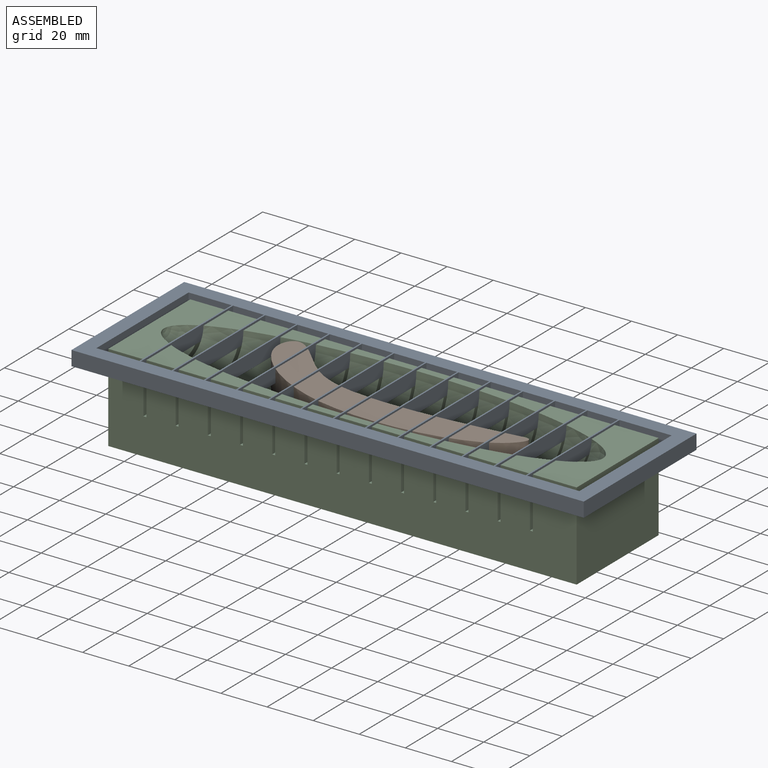
[diagram: assembled view]
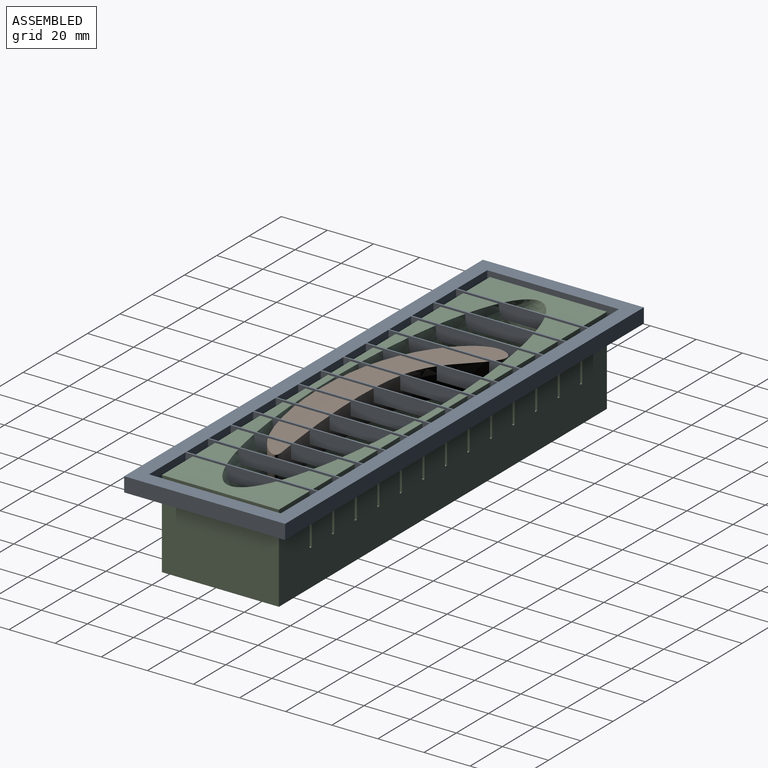
[diagram: assembled view, second angle]
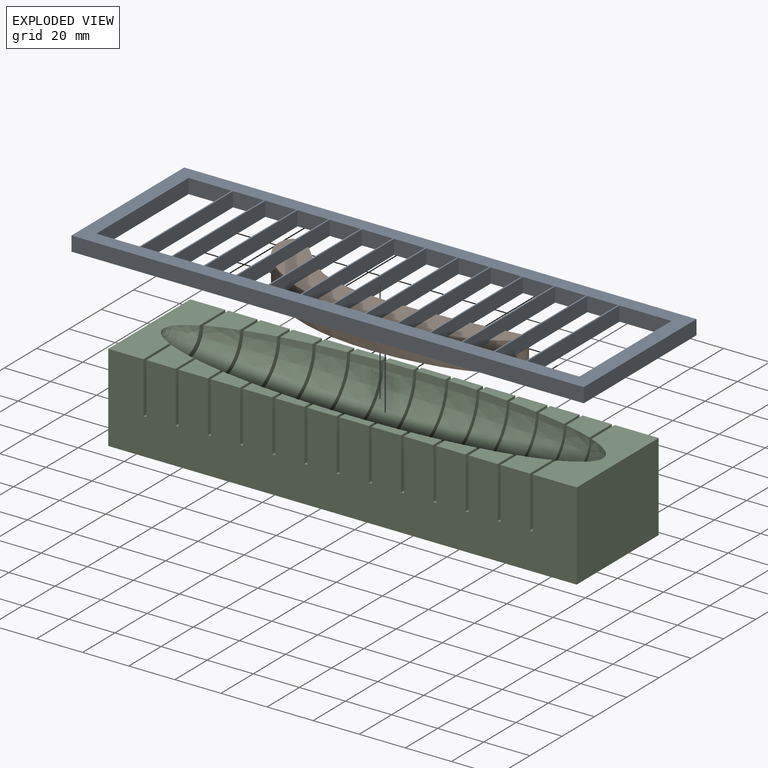
[diagram: exploded view]
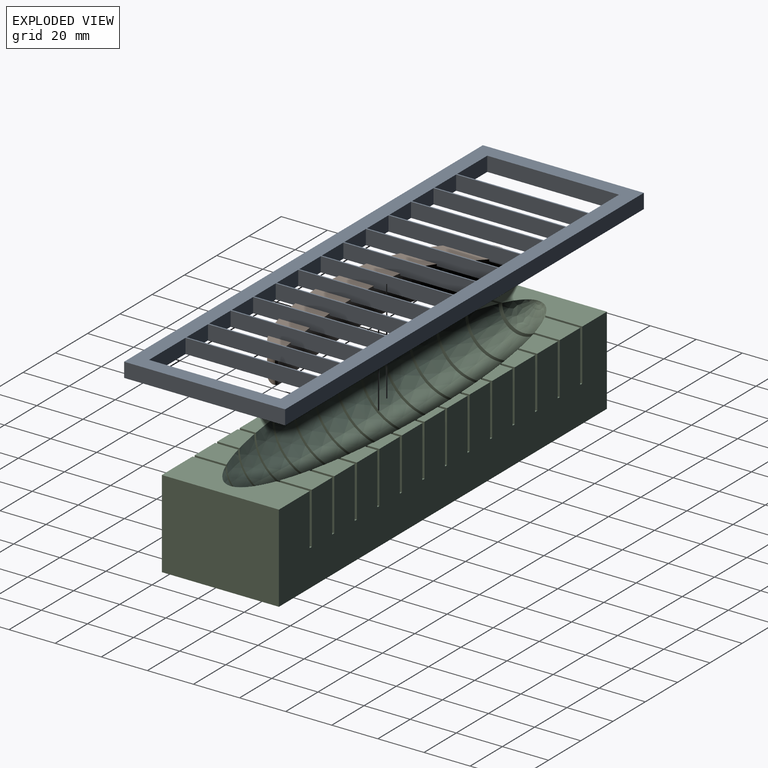
[diagram: exploded view, second angle]
ASSEMBLY  parts=3 mates=2
PART A: 62 faces, bbox 222.3x69.9x6.4 mm
  f0: plane 13.34x6.35mm, normal (0,1,0), area 84.7mm2, adj f34,f35,f59,f60
  f1: plane 13.34x6.35mm, normal (0,-1,0), area 84.7mm2, adj f34,f35,f59,f60
  f2: plane 13.34x6.35mm, normal (0,1,0), area 84.7mm2, adj f34,f35,f57,f58
  f3: plane 13.34x6.35mm, normal (0,-1,0), area 84.7mm2, adj f34,f35,f57,f58
  f4: plane 13.34x6.35mm, normal (0,1,0), area 84.7mm2, adj f34,f35,f55,f56
  f5: plane 13.34x6.35mm, normal (0,-1,0), area 84.7mm2, adj f34,f35,f55,f56
  f6: plane 13.34x6.35mm, normal (0,1,0), area 84.7mm2, adj f34,f35,f53,f54
  f7: plane 13.34x6.35mm, normal (0,-1,0), area 84.7mm2, adj f34,f35,f53,f54
  f8: plane 13.34x6.35mm, normal (0,1,0), area 84.7mm2, adj f34,f35,f51,f52
  f9: plane 13.34x6.35mm, normal (0,-1,0), area 84.7mm2, adj f34,f35,f51,f52
  f10: plane 13.34x6.35mm, normal (0,1,0), area 84.7mm2, adj f34,f35,f49,f50
  f11: plane 13.34x6.35mm, normal (0,-1,0), area 84.7mm2, adj f34,f35,f49,f50
  f12: plane 13.34x6.35mm, normal (0,1,0), area 84.7mm2, adj f34,f35,f47,f48
  f13: plane 13.34x6.35mm, normal (0,-1,0), area 84.7mm2, adj f34,f35,f47,f48
  f14: plane 13.34x6.35mm, normal (0,1,0), area 84.7mm2, adj f34,f35,f45,f46
  f15: plane 13.34x6.35mm, normal (0,-1,0), area 84.7mm2, adj f34,f35,f45,f46
  f16: plane 13.34x6.35mm, normal (0,1,0), area 84.7mm2, adj f34,f35,f43,f44
  f17: plane 13.34x6.35mm, normal (0,-1,0), area 84.7mm2, adj f34,f35,f43,f44
  f18: plane 13.34x6.35mm, normal (0,1,0), area 84.7mm2, adj f34,f35,f41,f42
  f19: plane 13.34x6.35mm, normal (0,-1,0), area 84.7mm2, adj f34,f35,f41,f42
  f20: plane 13.34x6.35mm, normal (0,1,0), area 84.7mm2, adj f34,f35,f39,f40
  f21: plane 13.34x6.35mm, normal (0,-1,0), area 84.7mm2, adj f34,f35,f39,f40
  f22: plane 13.34x6.35mm, normal (0,1,0), area 84.7mm2, adj f34,f35,f37,f38
  f23: plane 13.34x6.35mm, normal (0,-1,0), area 84.7mm2, adj f34,f35,f37,f38
  f24: plane 22.61x6.35mm, normal (0,1,0), area 143.5mm2, adj f29,f34,f35,f36
  f25: plane 22.61x6.35mm, normal (0,-1,0), area 143.5mm2, adj f29,f34,f35,f36
  f26: plane 222.25x6.35mm, normal (0,-1,0), area 1411.3mm2, adj f27,f33,f34,f35
  f27: plane 69.85x6.35mm, normal (1,0,0), area 443.5mm2, adj f26,f28,f34,f35
  f28: plane 222.25x6.35mm, normal (0,1,0), area 1411.3mm2, adj f27,f33,f34,f35
  f29: plane 57.15x6.35mm, normal (-1,0,0), area 362.9mm2, adj f24,f25,f34,f35
  f30: plane 18.67x6.35mm, normal (0,1,0), area 118.5mm2, adj f31,f34,f35,f61
  f31: plane 57.15x6.35mm, normal (1,0,0), area 362.9mm2, adj f30,f32,f34,f35
  f32: plane 18.67x6.35mm, normal (0,-1,0), area 118.5mm2, adj f31,f34,f35,f61
  f33: plane 69.85x6.35mm, normal (-1,0,0), area 443.5mm2, adj f26,f28,f34,f35
  f34: plane 222.25x69.85mm, normal (0,0,1), area 4020.2mm2, adj f0,f1,f2,f3,f4,f5,f6,f7
  f35: plane 222.25x69.85mm, normal (0,0,-1), area 4020.2mm2, adj f0,f1,f2,f3,f4,f5,f6,f7
  f36: plane 57.15x6.35mm, normal (1,0,0), area 362.9mm2, adj f24,f25,f34,f35
  f37: plane 57.15x6.35mm, normal (-1,0,0), area 362.9mm2, adj f22,f23,f34,f35
  f38: plane 57.15x6.35mm, normal (1,0,0), area 362.9mm2, adj f22,f23,f34,f35
  f39: plane 57.15x6.35mm, normal (-1,0,0), area 362.9mm2, adj f20,f21,f34,f35
  f40: plane 57.15x6.35mm, normal (1,0,0), area 362.9mm2, adj f20,f21,f34,f35
  f41: plane 57.15x6.35mm, normal (-1,0,0), area 362.9mm2, adj f18,f19,f34,f35
  f42: plane 57.15x6.35mm, normal (1,0,0), area 362.9mm2, adj f18,f19,f34,f35
  f43: plane 57.15x6.35mm, normal (-1,0,0), area 362.9mm2, adj f16,f17,f34,f35
  f44: plane 57.15x6.35mm, normal (1,0,0), area 362.9mm2, adj f16,f17,f34,f35
  f45: plane 57.15x6.35mm, normal (-1,0,0), area 362.9mm2, adj f14,f15,f34,f35
  f46: plane 57.15x6.35mm, normal (1,0,0), area 362.9mm2, adj f14,f15,f34,f35
  f47: plane 57.15x6.35mm, normal (-1,0,0), area 362.9mm2, adj f12,f13,f34,f35
  f48: plane 57.15x6.35mm, normal (1,0,0), area 362.9mm2, adj f12,f13,f34,f35
  f49: plane 57.15x6.35mm, normal (-1,0,0), area 362.9mm2, adj f10,f11,f34,f35
  f50: plane 57.15x6.35mm, normal (1,0,0), area 362.9mm2, adj f10,f11,f34,f35
  f51: plane 57.15x6.35mm, normal (-1,0,0), area 362.9mm2, adj f8,f9,f34,f35
  f52: plane 57.15x6.35mm, normal (1,0,0), area 362.9mm2, adj f8,f9,f34,f35
  f53: plane 57.15x6.35mm, normal (-1,0,0), area 362.9mm2, adj f6,f7,f34,f35
  f54: plane 57.15x6.35mm, normal (1,0,0), area 362.9mm2, adj f6,f7,f34,f35
  f55: plane 57.15x6.35mm, normal (-1,0,0), area 362.9mm2, adj f4,f5,f34,f35
  f56: plane 57.15x6.35mm, normal (1,0,0), area 362.9mm2, adj f4,f5,f34,f35
  f57: plane 57.15x6.35mm, normal (-1,0,0), area 362.9mm2, adj f2,f3,f34,f35
  f58: plane 57.15x6.35mm, normal (1,0,0), area 362.9mm2, adj f2,f3,f34,f35
  f59: plane 57.15x6.35mm, normal (-1,0,0), area 362.9mm2, adj f0,f1,f34,f35
  f60: plane 57.15x6.35mm, normal (1,0,0), area 362.9mm2, adj f0,f1,f34,f35
  f61: plane 57.15x6.35mm, normal (-1,0,0), area 362.9mm2, adj f30,f32,f34,f35
PART B: 3 faces, bbox 122.3x43.1x12.7 mm
  f0: extruded ~118.49x39.13mm, area 3420.8mm2, adj f1,f2
  f1: plane 122.31x43.12mm, normal (0,0,1), area 1704.5mm2, adj f0
  f2: plane 122.31x43.12mm, normal (0,0,-1), area 1704.5mm2, adj f0
PART C: 84 faces, bbox 203.2x50.8x38.1 mm
  f0: plane 15.41x12.7mm, normal (0,0,1), area 165mm2, adj f26,f41,f78,f81
  f1: plane 15.41x12.7mm, normal (0,0,1), area 165mm2, adj f25,f26,f78,f81
  f2: plane 12.7x10.62mm, normal (0,0,1), area 116.2mm2, adj f27,f41,f75,f79
  f3: plane 12.7x10.62mm, normal (0,0,1), area 116.2mm2, adj f25,f27,f75,f79
  f4: plane 12.7x7.62mm, normal (0,0,1), area 84.2mm2, adj f28,f41,f72,f76
  f5: plane 12.7x7.62mm, normal (0,0,1), area 84.2mm2, adj f25,f28,f72,f76
  f6: plane 12.7x5.59mm, normal (0,0,1), area 62.5mm2, adj f29,f41,f69,f73
  f7: plane 12.7x5.59mm, normal (0,0,1), area 62.5mm2, adj f25,f29,f69,f73
  f8: plane 12.7x4.25mm, normal (0,0,1), area 48.8mm2, adj f30,f41,f66,f70
  f9: plane 12.7x4.25mm, normal (0,0,1), area 48.8mm2, adj f25,f30,f66,f70
  f10: plane 12.7x3.46mm, normal (0,0,1), area 41.8mm2, adj f31,f41,f63,f67
  f11: plane 12.7x3.46mm, normal (0,0,1), area 41.8mm2, adj f25,f31,f63,f67
  f12: plane 12.7x3.34mm, normal (0,0,1), area 40.9mm2, adj f32,f41,f60,f64
  f13: plane 12.7x3.34mm, normal (0,0,1), area 40.9mm2, adj f25,f32,f60,f64
  f14: plane 12.7x3.98mm, normal (0,0,1), area 46.2mm2, adj f33,f41,f57,f61
  f15: plane 12.7x3.98mm, normal (0,0,1), area 46.2mm2, adj f25,f33,f57,f61
  f16: plane 12.7x5.16mm, normal (0,0,1), area 58.1mm2, adj f34,f41,f54,f58
  f17: plane 12.7x5.16mm, normal (0,0,1), area 58.1mm2, adj f25,f34,f54,f58
  f18: plane 12.7x6.99mm, normal (0,0,1), area 77.4mm2, adj f35,f41,f51,f55
  f19: plane 12.7x6.99mm, normal (0,0,1), area 77.4mm2, adj f25,f35,f51,f55
  f20: plane 12.7x9.67mm, normal (0,0,1), area 106.2mm2, adj f36,f41,f48,f52
  f21: plane 12.7x9.67mm, normal (0,0,1), area 106.2mm2, adj f25,f36,f48,f52
  f22: plane 13.81x12.7mm, normal (0,0,1), area 149.2mm2, adj f37,f41,f45,f49
  f23: plane 13.81x12.7mm, normal (0,0,1), area 149.2mm2, adj f25,f37,f45,f49
  f24: plane 50.8x19.05mm, normal (0,0,1), area 777.3mm2, adj f25,f38,f40,f41,f46
  f25: plane 203.2x38.1mm, normal (0,-1,0), area 7372.9mm2, adj f1,f3,f5,f7,f9,f11,f13,f15
  f26: revolved ~28.89x14.44mm, area 524.5mm2, adj f0,f1,f78,f81
  f27: revolved ~35.11x17.55mm, area 663.7mm2, adj f2,f3,f75,f79
  f28: revolved ~39.31x19.66mm, area 757.2mm2, adj f4,f5,f72,f76
  f29: revolved ~42.11x21.06mm, area 820.9mm2, adj f6,f7,f69,f73
  f30: revolved ~43.78x21.89mm, area 861.6mm2, adj f8,f9,f66,f70
  f31: revolved ~44.43x22.22mm, area 882.4mm2, adj f10,f11,f63,f67
  f32: revolved ~44.45x22.23mm, area 884.9mm2, adj f12,f13,f60,f64
  f33: revolved ~44.05x22.03mm, area 869.1mm2, adj f14,f15,f57,f61
  f34: revolved ~42.67x21.34mm, area 834.1mm2, adj f16,f17,f54,f58
  f35: revolved ~40.2x20.1mm, area 777.1mm2, adj f18,f19,f51,f55
  f36: revolved ~36.42x18.21mm, area 692.8mm2, adj f20,f21,f48,f52
  f37: revolved ~30.85x15.42mm, area 568.8mm2, adj f22,f23,f45,f49
  f38: revolved ~22.18x12.7mm, area 363mm2, adj f24,f46
  f39: plane 50.8x15.24mm, normal (0,0,1), area 662mm2, adj f25,f41,f42,f44,f82
  f40: plane 50.8x38.1mm, normal (1,0,0), area 1935.5mm2, adj f24,f25,f41,f43
  f41: plane 203.2x38.1mm, normal (0,1,0), area 7372.9mm2, adj f0,f2,f4,f6,f8,f10,f12,f14
  f42: plane 50.8x38.1mm, normal (-1,0,0), area 1935.5mm2, adj f25,f39,f41,f43
  f43: plane 203.2x50.8mm, normal (0,0,-1), area 10322.6mm2, adj f25,f40,f41,f42
  f44: revolved ~18.75x9.38mm, area 228.4mm2, adj f39,f82
  f45: plane 50.8x22.35mm, normal (1,0,0), area 924.6mm2, adj f22,f23,f25,f37,f41,f47
  f46: plane 50.8x22.35mm, normal (-1,0,0), area 942.4mm2, adj f24,f25,f38,f41,f47
  f47: plane 50.8x1.27mm, normal (0,0,1), area 64.5mm2, adj f25,f41,f45,f46
  f48: plane 50.8x22.35mm, normal (1,0,0), area 747.1mm2, adj f20,f21,f25,f36,f41,f50
  f49: plane 50.8x22.35mm, normal (-1,0,0), area 761.8mm2, adj f22,f23,f25,f37,f41,f50
  f50: plane 50.8x1.27mm, normal (0,0,1), area 64.5mm2, adj f25,f41,f48,f49
  f51: plane 50.8x22.35mm, normal (1,0,0), area 602.9mm2, adj f18,f19,f25,f35,f41,f53
  f52: plane 50.8x22.35mm, normal (-1,0,0), area 614.6mm2, adj f20,f21,f25,f36,f41,f53
  f53: plane 50.8x1.27mm, normal (0,0,1), area 64.5mm2, adj f25,f41,f51,f52
  f54: plane 50.8x22.35mm, normal (1,0,0), area 492.1mm2, adj f16,f17,f25,f34,f41,f56
  f55: plane 50.8x22.35mm, normal (-1,0,0), area 500.8mm2, adj f18,f19,f25,f35,f41,f56
  f56: plane 50.8x1.27mm, normal (0,0,1), area 64.5mm2, adj f25,f41,f54,f55
  f57: plane 50.8x22.35mm, normal (1,0,0), area 414.8mm2, adj f14,f15,f25,f33,f41,f59
  f58: plane 50.8x22.35mm, normal (-1,0,0), area 420.4mm2, adj f16,f17,f25,f34,f41,f59
  f59: plane 50.8x1.27mm, normal (0,0,1), area 64.5mm2, adj f25,f41,f57,f58
  f60: plane 50.8x22.35mm, normal (1,0,0), area 370.8mm2, adj f12,f13,f25,f32,f41,f62
  f61: plane 50.8x22.35mm, normal (-1,0,0), area 373.4mm2, adj f14,f15,f25,f33,f41,f62
  f62: plane 50.8x1.27mm, normal (0,0,1), area 64.5mm2, adj f25,f41,f60,f61
  f63: plane 50.8x22.35mm, normal (1,0,0), area 360.1mm2, adj f10,f11,f25,f31,f41,f65
  f64: plane 50.8x22.35mm, normal (-1,0,0), area 359.7mm2, adj f12,f13,f25,f32,f41,f65
  f65: plane 50.8x1.27mm, normal (0,0,1), area 64.5mm2, adj f25,f41,f63,f64
  f66: plane 50.8x22.35mm, normal (1,0,0), area 382.9mm2, adj f8,f9,f25,f30,f41,f68
  f67: plane 50.8x22.35mm, normal (-1,0,0), area 379.4mm2, adj f10,f11,f25,f31,f41,f68
  f68: plane 50.8x1.27mm, normal (0,0,1), area 64.5mm2, adj f25,f41,f66,f67
  f69: plane 50.8x22.35mm, normal (1,0,0), area 439mm2, adj f6,f7,f25,f29,f41,f71
  f70: plane 50.8x22.35mm, normal (-1,0,0), area 432.6mm2, adj f8,f9,f25,f30,f41,f71
  f71: plane 50.8x1.27mm, normal (0,0,1), area 64.5mm2, adj f25,f41,f69,f70
  f72: plane 50.8x22.35mm, normal (1,0,0), area 528.6mm2, adj f4,f5,f25,f28,f41,f74
  f73: plane 50.8x22.35mm, normal (-1,0,0), area 519mm2, adj f6,f7,f25,f29,f41,f74
  f74: plane 50.8x1.27mm, normal (0,0,1), area 64.5mm2, adj f25,f41,f72,f73
  f75: plane 50.8x22.35mm, normal (1,0,0), area 651.5mm2, adj f2,f3,f25,f27,f41,f77
  f76: plane 50.8x22.35mm, normal (-1,0,0), area 638.9mm2, adj f4,f5,f25,f28,f41,f77
  f77: plane 50.8x1.27mm, normal (0,0,1), area 64.5mm2, adj f25,f41,f75,f76
  f78: plane 50.8x22.35mm, normal (1,0,0), area 807.7mm2, adj f0,f1,f25,f26,f41,f80
  f79: plane 50.8x22.35mm, normal (-1,0,0), area 792.2mm2, adj f2,f3,f25,f27,f41,f80
  f80: plane 50.8x1.27mm, normal (0,0,1), area 64.5mm2, adj f25,f41,f78,f79
  f81: plane 50.8x22.35mm, normal (-1,0,0), area 978.8mm2, adj f0,f1,f25,f26,f41,f83
  f82: plane 50.8x22.35mm, normal (1,0,0), area 997.4mm2, adj f25,f39,f41,f44,f83
  f83: plane 50.8x1.27mm, normal (0,0,1), area 64.5mm2, adj f25,f41,f81,f82
PLACE A t=(-5.87,-76.98,31.83)mm
PLACE B t=(6.54,33.66,24.78)mm
PLACE C t=(-6.1,-13.48,-0.62)mm fixed
MATE slider A.f35 <-> C.f13  axis (0,0,-1) through (-6.1,-13.48,31.83)mm
MATE fastened B.f1 <-> C.f13  axis (0,0,1) through (-6.1,-21.1,37.48)mm
